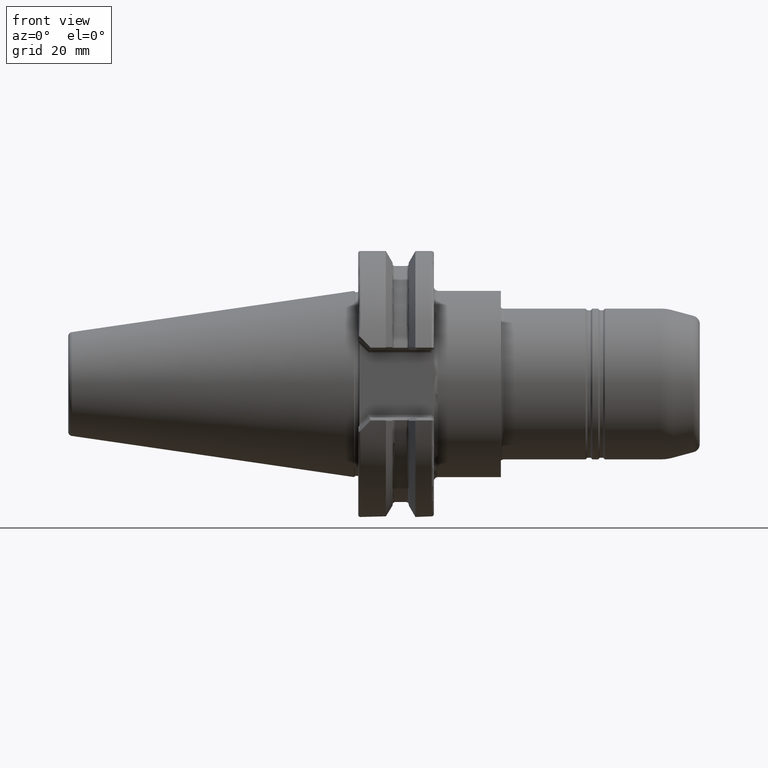
[diagram: clean part render]
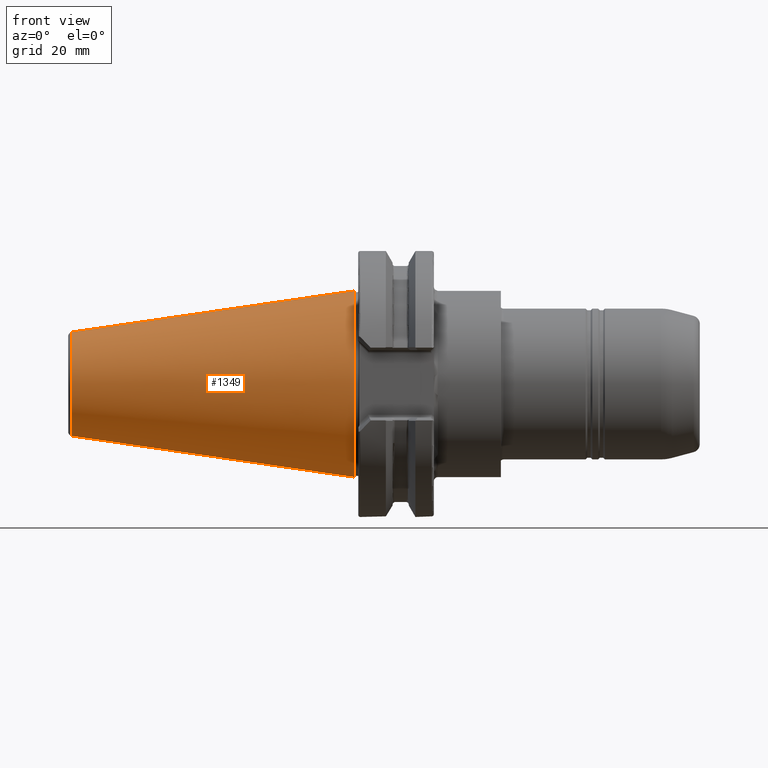
[diagram: same view with one face highlighted and labeled with its STEP entity id]
A machine part, front view. The second image highlights one B-rep face of the part: STEP entity #1349.
In plain terms, the highlighted conical surface has half-angle 8.297 deg.
Its self-contained STEP definition (entity closure, byte-faithful):
#78 = AXIS2_PLACEMENT_3D ( 'NONE', #3584, #1243, #3981 ) ;
#113 = EDGE_LOOP ( 'NONE', ( #2457, #4778, #3701, #3705 ) ) ;
#267 = DIRECTION ( 'NONE',  ( 1.000000000000000000, 0.0000000000000000000, 0.0000000000000000000 ) ) ;
#374 = DIRECTION ( 'NONE',  ( 0.0000000000000000000, 0.0000000000000000000, 1.000000000000000000 ) ) ;
#589 = VERTEX_POINT ( 'NONE', #2308 ) ;
#619 = EDGE_CURVE ( 'NONE', #589, #2381, #1384, .T. ) ;
#740 = CARTESIAN_POINT ( 'NONE',  ( 0.8556917727326929200, 0.0000000000000000000, 12.39657058265866000 ) ) ;
#1182 = CARTESIAN_POINT ( 'NONE',  ( 68.25000000000000000, 0.0000000000000000000, -22.22500000000000100 ) ) ;
#1243 = DIRECTION ( 'NONE',  ( -1.000000000000000000, -0.0000000000000000000, -0.0000000000000000000 ) ) ;
#1293 = CARTESIAN_POINT ( 'NONE',  ( 68.25000000000000000, 2.721777511104992800E-015, 22.22500000000000100 ) ) ;
#1349 = ADVANCED_FACE ( 'NONE', ( #3111 ), #4012, .T. ) ;
#1384 = LINE ( 'NONE', #4266, #2307 ) ;
#1416 = DIRECTION ( 'NONE',  ( 0.0000000000000000000, 0.0000000000000000000, -1.000000000000000000 ) ) ;
#2307 = VECTOR ( 'NONE', #5058, 1000.000000000000000 ) ;
#2308 = CARTESIAN_POINT ( 'NONE',  ( 0.8556917727326929200, 1.518142048445716700E-015, -12.39657058265866000 ) ) ;
#2381 = VERTEX_POINT ( 'NONE', #1182 ) ;
#2438 = VERTEX_POINT ( 'NONE', #4849 ) ;
#2457 = ORIENTED_EDGE ( 'NONE', *, *, #4200, .F. ) ;
#2462 = AXIS2_PLACEMENT_3D ( 'NONE', #5066, #2732, #374 ) ;
#2732 = DIRECTION ( 'NONE',  ( -1.000000000000000000, -0.0000000000000000000, -0.0000000000000000000 ) ) ;
#3011 = CARTESIAN_POINT ( 'NONE',  ( 68.25000000000000000, 0.0000000000000000000, 0.0000000000000000000 ) ) ;
#3111 = FACE_OUTER_BOUND ( 'NONE', #113, .T. ) ;
#3133 = VERTEX_POINT ( 'NONE', #740 ) ;
#3584 = CARTESIAN_POINT ( 'NONE',  ( 68.25000000000000000, 0.0000000000000000000, 0.0000000000000000000 ) ) ;
#3659 = CIRCLE ( 'NONE', #2462, 12.39657058265866000 ) ;
#3701 = ORIENTED_EDGE ( 'NONE', *, *, #619, .T. ) ;
#3705 = ORIENTED_EDGE ( 'NONE', *, *, #4680, .T. ) ;
#3981 = DIRECTION ( 'NONE',  ( 0.0000000000000000000, 0.0000000000000000000, 1.000000000000000000 ) ) ;
#4012 = CONICAL_SURFACE ( 'NONE', #4919, 22.22500000000000100, 0.1448138465474190800 ) ;
#4027 = CIRCLE ( 'NONE', #78, 22.22500000000000100 ) ;
#4200 = EDGE_CURVE ( 'NONE', #3133, #2438, #4699, .T. ) ;
#4266 = CARTESIAN_POINT ( 'NONE',  ( 68.25000000000000000, 0.0000000000000000000, -22.22500000000000100 ) ) ;
#4415 = DIRECTION ( 'NONE',  ( 0.9895327864921743500, 1.767266086135364000E-017, 0.1443082272673070800 ) ) ;
#4446 = VECTOR ( 'NONE', #4415, 1000.000000000000000 ) ;
#4680 = EDGE_CURVE ( 'NONE', #2381, #2438, #4027, .T. ) ;
#4699 = LINE ( 'NONE', #1293, #4446 ) ;
#4778 = ORIENTED_EDGE ( 'NONE', *, *, #4784, .F. ) ;
#4784 = EDGE_CURVE ( 'NONE', #589, #3133, #3659, .T. ) ;
#4849 = CARTESIAN_POINT ( 'NONE',  ( 68.25000000000000000, 2.721777511104992800E-015, 22.22500000000000100 ) ) ;
#4919 = AXIS2_PLACEMENT_3D ( 'NONE', #3011, #267, #1416 ) ;
#5058 = DIRECTION ( 'NONE',  ( 0.9895327864921743500, 0.0000000000000000000, -0.1443082272673070800 ) ) ;
#5066 = CARTESIAN_POINT ( 'NONE',  ( 0.8556917727326929200, 0.0000000000000000000, 0.0000000000000000000 ) ) ;